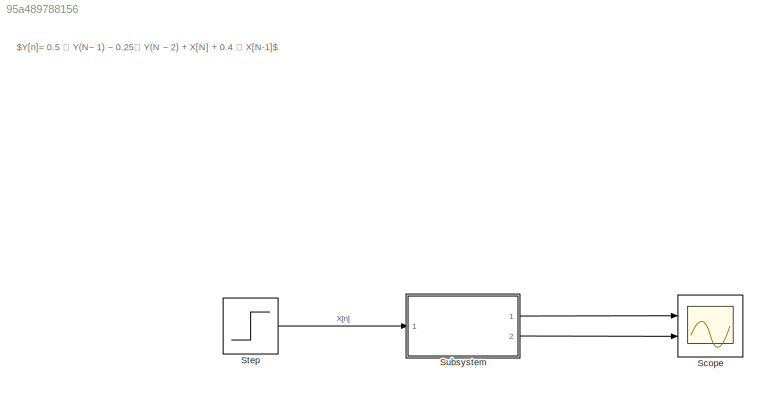
MODEL slx_95a489788156
KIND model
CONFIG AbsTol = auto
CONFIG EnableMultiTasking = off
CONFIG FixedStep = auto
CONFIG MaxStep = auto
CONFIG MinStep = auto
CONFIG RelTol = 1e-3
CONFIG SampleTimeConstraint = Unconstrained
CONFIG SolverName = VariableStepAuto
CONFIG StartTime = 0.0
CONFIG StopTime = 10.0
BLOCK [Scope] Scope
  Floating = off
  NumInputPorts = 2
  Ports = [2]
  ScopeSpecificationString = Simulink.scopes.TimeScopeBlockCfg('CurrentConfiguration', extmgr.ConfigurationSet(extmgr.Configuration('Core','General UI',true),extmgr.Configuration('Core','Source UI',true),extmgr.Configuration('Sources','WiredSimulink',true),extmgr.Configuration('Visuals','Time Domain',true,'SerializedDisplays',{struct('MinYLimReal','-0.125','MaxYLimReal','1.125','YLabelReal','','MinYLimMag','0.00000','MaxYLimM...<+2764ch>
BLOCK [Step] Step
  SampleTime = 0
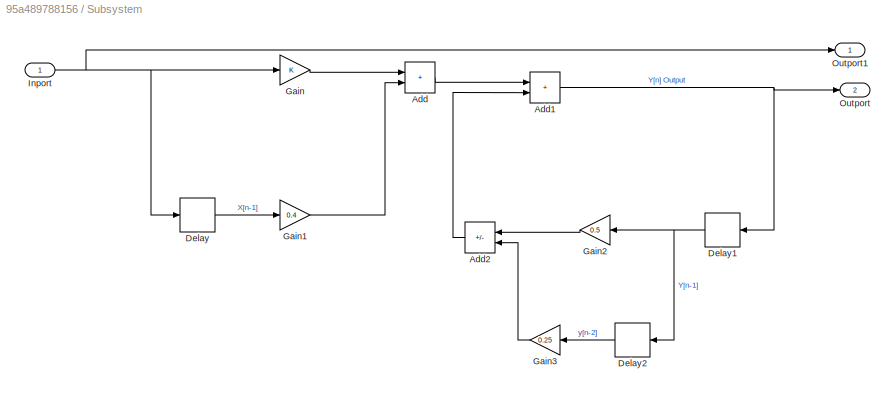
BLOCK [SubSystem] Subsystem
  Ports = [1, 2]
  RequestExecContextInheritance = off
BLOCK [Sum] Subsystem/Add
  IconShape = rectangular
  Ports = [2, 1]
BLOCK [Sum] Subsystem/Add1
  IconShape = rectangular
  Ports = [2, 1]
BLOCK [Sum] Subsystem/Add2
  IconShape = rectangular
  Inputs = +-
  Ports = [2, 1]
BLOCK [Delay] Subsystem/Delay
  DelayLength = 1
  InputPortMap = u0
  Ports = [1, 1]
BLOCK [Delay] Subsystem/Delay1
  DelayLength = 1
  InputPortMap = u0
  Ports = [1, 1]
BLOCK [Delay] Subsystem/Delay2
  DelayLength = 1
  InputPortMap = u0
  Ports = [1, 1]
BLOCK [Gain] Subsystem/Gain
BLOCK [Gain] Subsystem/Gain1
  Gain = 0.4
BLOCK [Gain] Subsystem/Gain2
  Gain = 0.5
BLOCK [Gain] Subsystem/Gain3
  Gain = 0.25
BLOCK [Inport] Subsystem/Inport
BLOCK [Outport] Subsystem/Outport
  Port = 2
BLOCK [Outport] Subsystem/Outport1
ANNOTATION (root): $Y[n]= 0.5 ∗ Y(N− 1) − 0.25∗ Y(N − 2) + X[N] + 0.4 ∗ X[N-1]$
LINE Step:1 -> Subsystem:1
NET Subsystem/Add1:1 -> Subsystem/Delay1:1, Subsystem/Outport:1
LINE Subsystem/Add2:1 -> Subsystem/Add1:2
LINE Subsystem/Add:1 -> Subsystem/Add1:1
NET Subsystem/Delay1:1 -> Subsystem/Delay2:1, Subsystem/Gain2:1
LINE Subsystem/Delay2:1 -> Subsystem/Gain3:1
LINE Subsystem/Delay:1 -> Subsystem/Gain1:1
LINE Subsystem/Gain1:1 -> Subsystem/Add:2
LINE Subsystem/Gain2:1 -> Subsystem/Add2:1
LINE Subsystem/Gain3:1 -> Subsystem/Add2:2
LINE Subsystem/Gain:1 -> Subsystem/Add:1
NET Subsystem/Inport:1 -> Subsystem/Delay:1, Subsystem/Gain:1, Subsystem/Outport1:1
LINE Subsystem:1 -> Scope:1
LINE Subsystem:2 -> Scope:2
note: NET lines group one-source signal fan-out (src -> all destinations, sorted); 1:1 wires keep LINE
